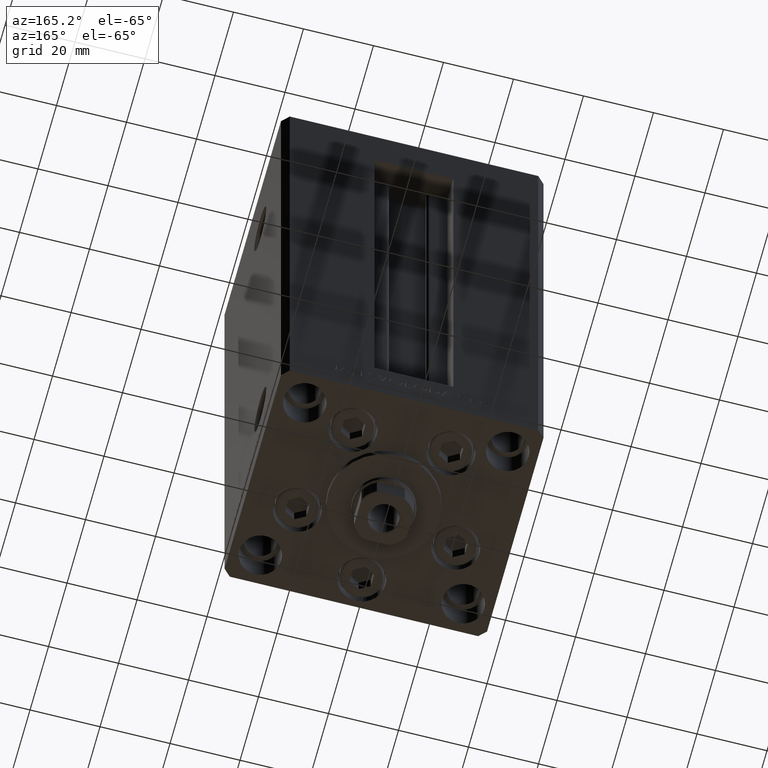
[diagram: clean part render]
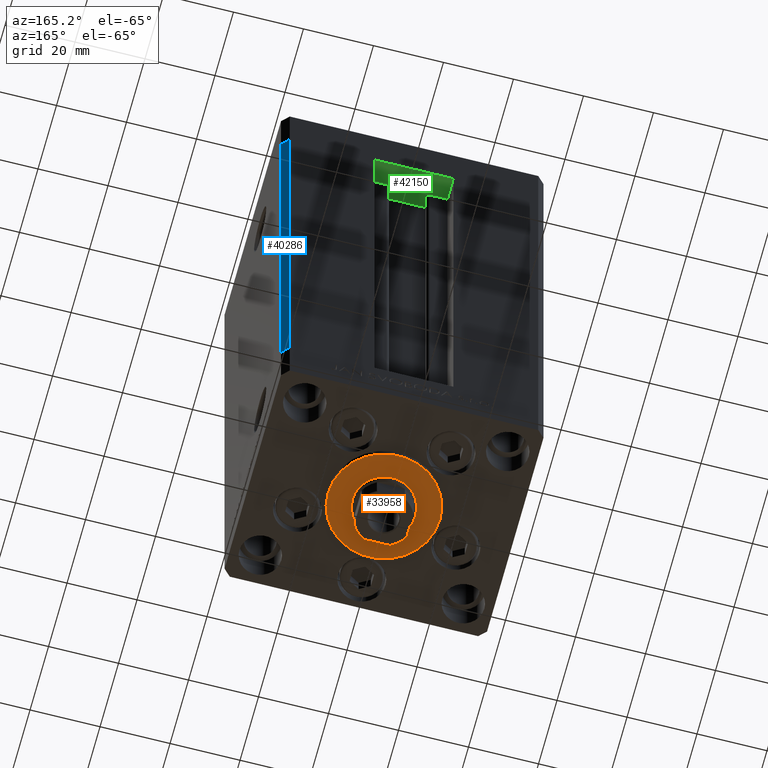
[diagram: same view with three faces highlighted in distinct colors, each labeled with its STEP entity id]
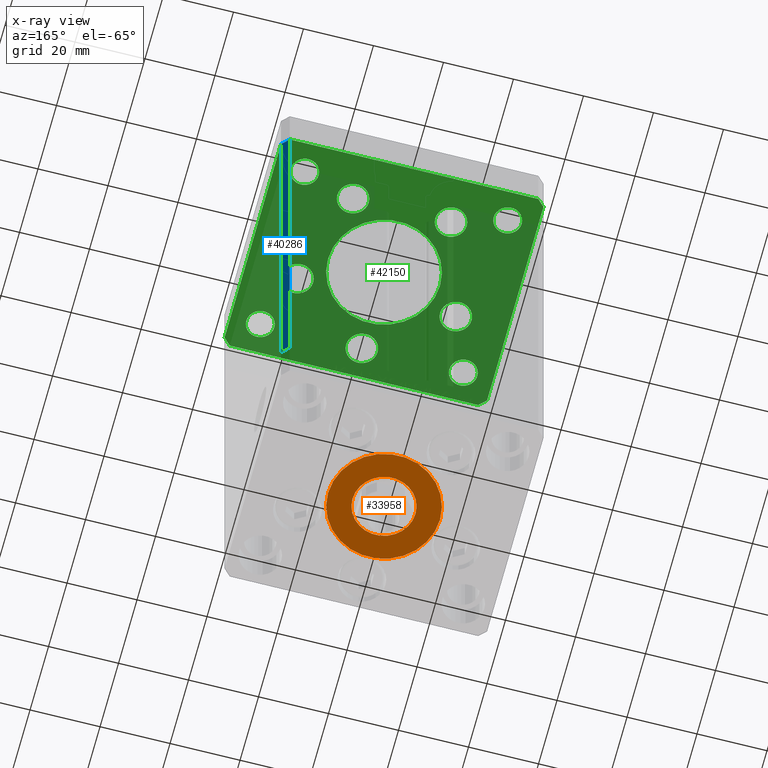
[diagram: x-ray of the same camera — body ghosted, the three highlighted faces saturated]
A machine part, auxiliary view with three faces highlighted in distinct colors.
The next image is the same camera in x-ray (body ghosted, the three faces saturated) — at least one of them is partly hidden behind the body in this view.
Their STEP definitions:

[orange] entity #33958 — the highlighted planar face has unit normal (0, 0, -1).
#1230 = CARTESIAN_POINT ( 'NONE',  ( -9.000000000000000000, -5.836711784674610467E-15, 2.000000000000000000 ) ) ;
#1290 = EDGE_CURVE ( 'NONE', #18493, #31038, #43567, .T. ) ;
#2140 = CARTESIAN_POINT ( 'NONE',  ( 16.00000000000000355, -4.979459025271462852E-15, 2.000000000000000000 ) ) ;
#2285 = DIRECTION ( 'NONE',  ( 1.000000000000000000, 0.000000000000000000, 0.000000000000000000 ) ) ;
#3329 = EDGE_CURVE ( 'NONE', #31038, #18493, #34871, .T. ) ;
#3534 = AXIS2_PLACEMENT_3D ( 'NONE', #17455, #47856, #13955 ) ;
#4815 = CIRCLE ( 'NONE', #11962, 9.000000000000000000 ) ;
#5943 = DIRECTION ( 'NONE',  ( 0.000000000000000000, 0.000000000000000000, 1.000000000000000000 ) ) ;
#11962 = AXIS2_PLACEMENT_3D ( 'NONE', #37442, #37687, #26223 ) ;
#12464 = CARTESIAN_POINT ( 'NONE',  ( 0.000000000000000000, -6.938893903907228378E-15, 2.000000000000000000 ) ) ;
#13387 = AXIS2_PLACEMENT_3D ( 'NONE', #12464, #23217, #38891 ) ;
#13760 = ORIENTED_EDGE ( 'NONE', *, *, #3329, .T. ) ;
#13955 = DIRECTION ( 'NONE',  ( 1.000000000000000000, 0.000000000000000000, 0.000000000000000000 ) ) ;
#14945 = EDGE_LOOP ( 'NONE', ( #13760, #24276 ) ) ;
#17455 = CARTESIAN_POINT ( 'NONE',  ( 0.000000000000000000, -6.938893903907228378E-15, 2.000000000000000000 ) ) ;
#18493 = VERTEX_POINT ( 'NONE', #2140 ) ;
#21156 = DIRECTION ( 'NONE',  ( 1.000000000000000000, 0.000000000000000000, -0.000000000000000000 ) ) ;
#23217 = DIRECTION ( 'NONE',  ( 0.000000000000000000, 0.000000000000000000, 1.000000000000000000 ) ) ;
#24276 = ORIENTED_EDGE ( 'NONE', *, *, #1290, .T. ) ;
#24395 = PLANE ( 'NONE',  #35051 ) ;
#24723 = CARTESIAN_POINT ( 'NONE',  ( 0.000000000000000000, -6.938893903907228378E-15, 2.000000000000000000 ) ) ;
#26223 = DIRECTION ( 'NONE',  ( 1.000000000000000000, 0.000000000000000000, 0.000000000000000000 ) ) ;
#28373 = CARTESIAN_POINT ( 'NONE',  ( 0.000000000000000000, -6.938893903907228378E-15, 2.000000000000000000 ) ) ;
#29781 = CIRCLE ( 'NONE', #3534, 9.000000000000000000 ) ;
#30275 = ORIENTED_EDGE ( 'NONE', *, *, #45425, .F. ) ;
#30739 = CARTESIAN_POINT ( 'NONE',  ( 9.000000000000000000, -6.938893903907228378E-15, 2.000000000000000000 ) ) ;
#31038 = VERTEX_POINT ( 'NONE', #39585 ) ;
#31485 = ORIENTED_EDGE ( 'NONE', *, *, #37812, .F. ) ;
#33958 = ADVANCED_FACE ( 'NONE', ( #39103, #40089 ), #24395, .T. ) ;
#34871 = CIRCLE ( 'NONE', #13387, 16.00000000000000355 ) ;
#35051 = AXIS2_PLACEMENT_3D ( 'NONE', #28373, #5943, #21156 ) ;
#37442 = CARTESIAN_POINT ( 'NONE',  ( 0.000000000000000000, -6.938893903907228378E-15, 2.000000000000000000 ) ) ;
#37687 = DIRECTION ( 'NONE',  ( 0.000000000000000000, 0.000000000000000000, 1.000000000000000000 ) ) ;
#37812 = EDGE_CURVE ( 'NONE', #40835, #46482, #4815, .T. ) ;
#38891 = DIRECTION ( 'NONE',  ( 1.000000000000000000, 0.000000000000000000, 0.000000000000000000 ) ) ;
#39103 = FACE_BOUND ( 'NONE', #45609, .T. ) ;
#39585 = CARTESIAN_POINT ( 'NONE',  ( -16.00000000000000355, -6.938893903907228378E-15, 2.000000000000000000 ) ) ;
#40089 = FACE_OUTER_BOUND ( 'NONE', #14945, .T. ) ;
#40160 = DIRECTION ( 'NONE',  ( 0.000000000000000000, 0.000000000000000000, 1.000000000000000000 ) ) ;
#40835 = VERTEX_POINT ( 'NONE', #30739 ) ;
#42784 = AXIS2_PLACEMENT_3D ( 'NONE', #24723, #40160, #2285 ) ;
#43567 = CIRCLE ( 'NONE', #42784, 16.00000000000000355 ) ;
#45425 = EDGE_CURVE ( 'NONE', #46482, #40835, #29781, .T. ) ;
#45609 = EDGE_LOOP ( 'NONE', ( #31485, #30275 ) ) ;
#46482 = VERTEX_POINT ( 'NONE', #1230 ) ;
#47856 = DIRECTION ( 'NONE',  ( 0.000000000000000000, 0.000000000000000000, 1.000000000000000000 ) ) ;

[blue] entity #40286 — the highlighted planar face has unit normal (0.7071, 0.7071, 0).
#1353 = EDGE_CURVE ( 'NONE', #36425, #32626, #43920, .T. ) ;
#1440 = ORIENTED_EDGE ( 'NONE', *, *, #23795, .F. ) ;
#3404 = ORIENTED_EDGE ( 'NONE', *, *, #24308, .F. ) ;
#3437 = DIRECTION ( 'NONE',  ( 0.7071067811865500152, -0.7071067811865451302, 0.000000000000000000 ) ) ;
#6023 = LINE ( 'NONE', #10006, #43459 ) ;
#6267 = DIRECTION ( 'NONE',  ( 0.7071067811865500152, -0.7071067811865451302, 0.000000000000000000 ) ) ;
#7431 = AXIS2_PLACEMENT_3D ( 'NONE', #40164, #8662, #30610 ) ;
#8662 = DIRECTION ( 'NONE',  ( 0.7071067811865451302, 0.7071067811865500152, -0.000000000000000000 ) ) ;
#10006 = CARTESIAN_POINT ( 'NONE',  ( 35.50000000000000000, 32.49999999999999289, 0.000000000000000000 ) ) ;
#10168 = LINE ( 'NONE', #21643, #29264 ) ;
#11663 = ORIENTED_EDGE ( 'NONE', *, *, #26173, .T. ) ;
#16139 = LINE ( 'NONE', #31346, #26772 ) ;
#17356 = VERTEX_POINT ( 'NONE', #42839 ) ;
#18081 = ORIENTED_EDGE ( 'NONE', *, *, #1353, .T. ) ;
#18282 = VERTEX_POINT ( 'NONE', #24694 ) ;
#20081 = CARTESIAN_POINT ( 'NONE',  ( 37.50000000000000711, 30.50000000000000000, 136.0000000000000000 ) ) ;
#20734 = CARTESIAN_POINT ( 'NONE',  ( 37.50000000000000711, 30.50000000000000000, 136.0000000000000000 ) ) ;
#21643 = CARTESIAN_POINT ( 'NONE',  ( 35.50000000000000000, 32.49999999999999289, 136.0000000000000000 ) ) ;
#23795 = EDGE_CURVE ( 'NONE', #18282, #32626, #6023, .T. ) ;
#24308 = EDGE_CURVE ( 'NONE', #17356, #18282, #16139, .T. ) ;
#24694 = CARTESIAN_POINT ( 'NONE',  ( 35.50000000000000000, 32.49999999999999289, 0.000000000000000000 ) ) ;
#25280 = VECTOR ( 'NONE', #35934, 1000.000000000000000 ) ;
#26173 = EDGE_CURVE ( 'NONE', #17356, #36425, #10168, .T. ) ;
#26772 = VECTOR ( 'NONE', #46561, 1000.000000000000000 ) ;
#27773 = CARTESIAN_POINT ( 'NONE',  ( 37.50000000000000711, 30.50000000000000000, 0.000000000000000000 ) ) ;
#28707 = FACE_OUTER_BOUND ( 'NONE', #48189, .T. ) ;
#29264 = VECTOR ( 'NONE', #3437, 1000.000000000000114 ) ;
#30610 = DIRECTION ( 'NONE',  ( -0.7071067811865500152, 0.7071067811865451302, 0.000000000000000000 ) ) ;
#31346 = CARTESIAN_POINT ( 'NONE',  ( 35.50000000000000000, 32.49999999999999289, 136.0000000000000000 ) ) ;
#32626 = VERTEX_POINT ( 'NONE', #27773 ) ;
#35934 = DIRECTION ( 'NONE',  ( -0.000000000000000000, -0.000000000000000000, -1.000000000000000000 ) ) ;
#36425 = VERTEX_POINT ( 'NONE', #20081 ) ;
#40164 = CARTESIAN_POINT ( 'NONE',  ( 35.50000000000000000, 32.49999999999999289, 136.0000000000000000 ) ) ;
#40286 = ADVANCED_FACE ( 'NONE', ( #28707 ), #43924, .T. ) ;
#42839 = CARTESIAN_POINT ( 'NONE',  ( 35.50000000000000000, 32.49999999999999289, 136.0000000000000000 ) ) ;
#43459 = VECTOR ( 'NONE', #6267, 1000.000000000000114 ) ;
#43920 = LINE ( 'NONE', #20734, #25280 ) ;
#43924 = PLANE ( 'NONE',  #7431 ) ;
#46561 = DIRECTION ( 'NONE',  ( -0.000000000000000000, -0.000000000000000000, -1.000000000000000000 ) ) ;
#48189 = EDGE_LOOP ( 'NONE', ( #1440, #3404, #11663, #18081 ) ) ;

[green] entity #42150 — the highlighted planar face has unit normal (0, 0, 1).
#232 = CARTESIAN_POINT ( 'NONE',  ( 37.49999999999992184, 30.50000000000001066, -15.00000000000000000 ) ) ;
#525 = AXIS2_PLACEMENT_3D ( 'NONE', #14129, #44295, #10874 ) ;
#616 = EDGE_CURVE ( 'NONE', #21477, #29511, #42752, .T. ) ;
#666 = AXIS2_PLACEMENT_3D ( 'NONE', #14897, #11149, #22865 ) ;
#700 = VERTEX_POINT ( 'NONE', #4431 ) ;
#746 = ORIENTED_EDGE ( 'NONE', *, *, #7643, .F. ) ;
#842 = AXIS2_PLACEMENT_3D ( 'NONE', #20213, #42900, #45654 ) ;
#1044 = EDGE_CURVE ( 'NONE', #27086, #21749, #10929, .T. ) ;
#1264 = FACE_BOUND ( 'NONE', #30896, .T. ) ;
#1465 = CARTESIAN_POINT ( 'NONE',  ( 37.50000000000001421, -30.50000000000000711, -15.00000000000000000 ) ) ;
#2245 = AXIS2_PLACEMENT_3D ( 'NONE', #3318, #34449, #41451 ) ;
#2641 = DIRECTION ( 'NONE',  ( 0.000000000000000000, -0.000000000000000000, -1.000000000000000000 ) ) ;
#2957 = DIRECTION ( 'NONE',  ( 0.000000000000000000, -0.000000000000000000, -1.000000000000000000 ) ) ;
#3318 = CARTESIAN_POINT ( 'NONE',  ( -29.00000000000001066, -23.99999999999999289, -15.00000000000000000 ) ) ;
#3576 = DIRECTION ( 'NONE',  ( -0.000000000000000000, -0.000000000000000000, -1.000000000000000000 ) ) ;
#3810 = VERTEX_POINT ( 'NONE', #5401 ) ;
#3818 = DIRECTION ( 'NONE',  ( 1.000000000000000000, 9.773090005503140331E-17, 0.000000000000000000 ) ) ;
#4197 = VERTEX_POINT ( 'NONE', #23810 ) ;
#4246 = CARTESIAN_POINT ( 'NONE',  ( 29.00000000000001066, 24.00000000000000711, -15.00000000000000000 ) ) ;
#4318 = ORIENTED_EDGE ( 'NONE', *, *, #7775, .F. ) ;
#4344 = CARTESIAN_POINT ( 'NONE',  ( -18.49106857963322526, 19.49999999999999645, -15.00000000000000000 ) ) ;
#4431 = CARTESIAN_POINT ( 'NONE',  ( 4.500000000000003553, -24.00000000000000000, -15.00000000000000000 ) ) ;
#4612 = VECTOR ( 'NONE', #37537, 1000.000000000000000 ) ;
#4788 = DIRECTION ( 'NONE',  ( 1.000000000000000000, 0.000000000000000000, 0.000000000000000000 ) ) ;
#5201 = CARTESIAN_POINT ( 'NONE',  ( 2.939152317953647500E-15, -24.00000000000000000, -15.00000000000000000 ) ) ;
#5401 = CARTESIAN_POINT ( 'NONE',  ( -37.50000000000001421, 30.49999999999998579, -15.00000000000000000 ) ) ;
#5475 = CIRCLE ( 'NONE', #19016, 4.000000000000000000 ) ;
#5625 = CIRCLE ( 'NONE', #42256, 4.500000000000005329 ) ;
#5636 = CARTESIAN_POINT ( 'NONE',  ( 35.50000000000000711, -32.50000000000000711, -15.00000000000000000 ) ) ;
#6250 = ORIENTED_EDGE ( 'NONE', *, *, #12266, .F. ) ;
#6318 = DIRECTION ( 'NONE',  ( 1.000000000000000000, 0.000000000000000000, 0.000000000000000000 ) ) ;
#6409 = CARTESIAN_POINT ( 'NONE',  ( -13.99106857963322703, 19.49999999999999645, -15.00000000000000000 ) ) ;
#6484 = VERTEX_POINT ( 'NONE', #4344 ) ;
#6688 = DIRECTION ( 'NONE',  ( 1.000000000000000000, 0.000000000000000000, 0.000000000000000000 ) ) ;
#7029 = CARTESIAN_POINT ( 'NONE',  ( 18.49106857963322881, 19.50000000000000000, -15.00000000000000000 ) ) ;
#7391 = CARTESIAN_POINT ( 'NONE',  ( 18.12741699796951877, -8.000000000000000000, -15.00000000000000000 ) ) ;
#7635 = VECTOR ( 'NONE', #3818, 1000.000000000000000 ) ;
#7643 = EDGE_CURVE ( 'NONE', #21749, #27086, #42851, .T. ) ;
#7681 = CARTESIAN_POINT ( 'NONE',  ( -35.49999999999998579, -32.50000000000001421, -15.00000000000000000 ) ) ;
#7775 = EDGE_CURVE ( 'NONE', #33415, #700, #40490, .T. ) ;
#8198 = EDGE_CURVE ( 'NONE', #42674, #11990, #5475, .T. ) ;
#8255 = EDGE_CURVE ( 'NONE', #39407, #36301, #22212, .T. ) ;
#8803 = EDGE_LOOP ( 'NONE', ( #9257, #17167 ) ) ;
#8996 = CARTESIAN_POINT ( 'NONE',  ( 2.939152317953647500E-15, -24.00000000000000000, -15.00000000000000000 ) ) ;
#9058 = EDGE_LOOP ( 'NONE', ( #45356, #42800 ) ) ;
#9212 = DIRECTION ( 'NONE',  ( -0.000000000000000000, 0.000000000000000000, 1.000000000000000000 ) ) ;
#9257 = ORIENTED_EDGE ( 'NONE', *, *, #21452, .F. ) ;
#9392 = VERTEX_POINT ( 'NONE', #48269 ) ;
#9547 = CARTESIAN_POINT ( 'NONE',  ( 25.00000000000000711, -23.99999999999999289, -15.00000000000000000 ) ) ;
#9696 = DIRECTION ( 'NONE',  ( 0.000000000000000000, 0.000000000000000000, 1.000000000000000000 ) ) ;
#10038 = CIRCLE ( 'NONE', #25954, 4.000000000000003553 ) ;
#10181 = DIRECTION ( 'NONE',  ( 1.000000000000000000, 0.000000000000000000, 0.000000000000000000 ) ) ;
#10234 = DIRECTION ( 'NONE',  ( 0.000000000000000000, -0.000000000000000000, -1.000000000000000000 ) ) ;
#10734 = EDGE_LOOP ( 'NONE', ( #38906, #6250 ) ) ;
#10781 = EDGE_LOOP ( 'NONE', ( #47275, #47835, #27870, #16927, #12382, #41226, #35056, #36435 ) ) ;
#10798 = VERTEX_POINT ( 'NONE', #31234 ) ;
#10870 = AXIS2_PLACEMENT_3D ( 'NONE', #6409, #48765, #25360 ) ;
#10874 = DIRECTION ( 'NONE',  ( 1.000000000000000000, 0.000000000000000000, 0.000000000000000000 ) ) ;
#10906 = DIRECTION ( 'NONE',  ( -1.000000000000000000, -1.954618001100629052E-16, 0.000000000000000000 ) ) ;
#10929 = CIRCLE ( 'NONE', #39564, 3.999999999999996447 ) ;
#11149 = DIRECTION ( 'NONE',  ( 0.000000000000000000, -0.000000000000000000, -1.000000000000000000 ) ) ;
#11235 = VERTEX_POINT ( 'NONE', #41367 ) ;
#11294 = DIRECTION ( 'NONE',  ( -1.000000000000000000, 0.000000000000000000, 0.000000000000000000 ) ) ;
#11299 = EDGE_CURVE ( 'NONE', #25141, #4197, #27377, .T. ) ;
#11454 = DIRECTION ( 'NONE',  ( -1.000000000000000000, 0.000000000000000000, 0.000000000000000000 ) ) ;
#11990 = VERTEX_POINT ( 'NONE', #19850 ) ;
#12033 = CARTESIAN_POINT ( 'NONE',  ( 16.00000000000000000, 0.000000000000000000, -15.00000000000000000 ) ) ;
#12266 = EDGE_CURVE ( 'NONE', #9392, #44294, #26568, .T. ) ;
#12382 = ORIENTED_EDGE ( 'NONE', *, *, #11299, .F. ) ;
#12447 = VERTEX_POINT ( 'NONE', #9547 ) ;
#12512 = DIRECTION ( 'NONE',  ( -1.000000000000000000, 0.000000000000000000, 0.000000000000000000 ) ) ;
#12644 = VERTEX_POINT ( 'NONE', #1465 ) ;
#12711 = FACE_BOUND ( 'NONE', #9058, .T. ) ;
#12857 = CARTESIAN_POINT ( 'NONE',  ( -4.499999999999999112, -24.00000000000000000, -15.00000000000000000 ) ) ;
#13430 = AXIS2_PLACEMENT_3D ( 'NONE', #22752, #33705, #15273 ) ;
#13637 = CIRCLE ( 'NONE', #45487, 4.000000000000003553 ) ;
#13727 = EDGE_CURVE ( 'NONE', #700, #33415, #24996, .T. ) ;
#14102 = AXIS2_PLACEMENT_3D ( 'NONE', #33600, #22146, #6688 ) ;
#14129 = CARTESIAN_POINT ( 'NONE',  ( -13.99106857963322703, 19.49999999999999645, -15.00000000000000000 ) ) ;
#14354 = DIRECTION ( 'NONE',  ( 1.000000000000000000, 0.000000000000000000, 0.000000000000000000 ) ) ;
#14897 = CARTESIAN_POINT ( 'NONE',  ( 0.000000000000000000, 0.000000000000000000, -15.00000000000000000 ) ) ;
#14908 = CARTESIAN_POINT ( 'NONE',  ( 35.49999999999992184, 32.50000000000000711, -15.00000000000000000 ) ) ;
#15039 = VECTOR ( 'NONE', #19317, 1000.000000000000000 ) ;
#15077 = DIRECTION ( 'NONE',  ( 0.000000000000000000, -0.000000000000000000, -1.000000000000000000 ) ) ;
#15206 = DIRECTION ( 'NONE',  ( 4.550094363217855288E-16, -1.000000000000000000, 0.000000000000000000 ) ) ;
#15273 = DIRECTION ( 'NONE',  ( 1.000000000000000000, 0.000000000000000000, 0.000000000000000000 ) ) ;
#15429 = DIRECTION ( 'NONE',  ( -0.7071067811865482389, 0.7071067811865469066, 0.000000000000000000 ) ) ;
#15642 = ORIENTED_EDGE ( 'NONE', *, *, #8255, .F. ) ;
#15654 = DIRECTION ( 'NONE',  ( 1.000000000000000000, 0.000000000000000000, 0.000000000000000000 ) ) ;
#15778 = CIRCLE ( 'NONE', #666, 16.00000000000000000 ) ;
#16131 = DIRECTION ( 'NONE',  ( 0.000000000000000000, 0.000000000000000000, 1.000000000000000000 ) ) ;
#16305 = EDGE_CURVE ( 'NONE', #11990, #42674, #48942, .T. ) ;
#16381 = AXIS2_PLACEMENT_3D ( 'NONE', #26416, #30398, #11454 ) ;
#16806 = ORIENTED_EDGE ( 'NONE', *, *, #37931, .F. ) ;
#16927 = ORIENTED_EDGE ( 'NONE', *, *, #31113, .F. ) ;
#16936 = CARTESIAN_POINT ( 'NONE',  ( 0.000000000000000000, 0.000000000000000000, -15.00000000000000000 ) ) ;
#17135 = LINE ( 'NONE', #36830, #40101 ) ;
#17167 = ORIENTED_EDGE ( 'NONE', *, *, #24502, .F. ) ;
#17188 = FACE_BOUND ( 'NONE', #48899, .T. ) ;
#17578 = CIRCLE ( 'NONE', #21573, 4.500000000000000888 ) ;
#18407 = EDGE_CURVE ( 'NONE', #12447, #42615, #21934, .T. ) ;
#18948 = ORIENTED_EDGE ( 'NONE', *, *, #616, .F. ) ;
#18950 = EDGE_LOOP ( 'NONE', ( #35126, #16806 ) ) ;
#19016 = AXIS2_PLACEMENT_3D ( 'NONE', #24403, #9696, #31882 ) ;
#19307 = CARTESIAN_POINT ( 'NONE',  ( -27.12741699796951877, -8.000000000000005329, -15.00000000000000000 ) ) ;
#19317 = DIRECTION ( 'NONE',  ( -0.7071067811865426878, -0.7071067811865524577, 0.000000000000000000 ) ) ;
#19390 = CARTESIAN_POINT ( 'NONE',  ( -35.50000000000002842, 32.49999999999999289, -15.00000000000000000 ) ) ;
#19850 = CARTESIAN_POINT ( 'NONE',  ( -33.00000000000000711, 24.00000000000000711, -15.00000000000000000 ) ) ;
#19941 = DIRECTION ( 'NONE',  ( 1.000000000000000000, 0.000000000000000000, 0.000000000000000000 ) ) ;
#20098 = ORIENTED_EDGE ( 'NONE', *, *, #8198, .T. ) ;
#20213 = CARTESIAN_POINT ( 'NONE',  ( 0.000000000000000000, 0.000000000000000000, -15.00000000000000000 ) ) ;
#20268 = DIRECTION ( 'NONE',  ( 0.7071067811865474617, -0.7071067811865474617, 0.000000000000000000 ) ) ;
#20309 = AXIS2_PLACEMENT_3D ( 'NONE', #25268, #20796, #6318 ) ;
#20796 = DIRECTION ( 'NONE',  ( 0.000000000000000000, 0.000000000000000000, 1.000000000000000000 ) ) ;
#20985 = EDGE_LOOP ( 'NONE', ( #30661, #4318 ) ) ;
#21452 = EDGE_CURVE ( 'NONE', #43067, #6484, #43542, .T. ) ;
#21477 = VERTEX_POINT ( 'NONE', #25607 ) ;
#21573 = AXIS2_PLACEMENT_3D ( 'NONE', #44392, #10234, #37656 ) ;
#21749 = VERTEX_POINT ( 'NONE', #48153 ) ;
#21934 = CIRCLE ( 'NONE', #16381, 4.000000000000003553 ) ;
#22083 = LINE ( 'NONE', #48984, #4612 ) ;
#22146 = DIRECTION ( 'NONE',  ( 0.000000000000000000, -0.000000000000000000, -1.000000000000000000 ) ) ;
#22184 = CIRCLE ( 'NONE', #13430, 4.499999999999997335 ) ;
#22212 = CIRCLE ( 'NONE', #48461, 4.500000000000000888 ) ;
#22329 = CIRCLE ( 'NONE', #842, 16.00000000000000000 ) ;
#22502 = VERTEX_POINT ( 'NONE', #29991 ) ;
#22646 = EDGE_CURVE ( 'NONE', #49001, #31268, #30973, .T. ) ;
#22752 = CARTESIAN_POINT ( 'NONE',  ( -22.62741699796951877, -8.000000000000005329, -15.00000000000000000 ) ) ;
#22865 = DIRECTION ( 'NONE',  ( 1.000000000000000000, 0.000000000000000000, 0.000000000000000000 ) ) ;
#23335 = CARTESIAN_POINT ( 'NONE',  ( 33.00000000000001421, -23.99999999999999289, -15.00000000000000000 ) ) ;
#23591 = EDGE_CURVE ( 'NONE', #42615, #12447, #10038, .T. ) ;
#23602 = VERTEX_POINT ( 'NONE', #12033 ) ;
#23810 = CARTESIAN_POINT ( 'NONE',  ( 35.49999999999992184, 32.50000000000000711, -15.00000000000000000 ) ) ;
#23943 = FACE_BOUND ( 'NONE', #35420, .T. ) ;
#24179 = FACE_BOUND ( 'NONE', #18950, .T. ) ;
#24403 = CARTESIAN_POINT ( 'NONE',  ( -29.00000000000001066, 24.00000000000000711, -15.00000000000000000 ) ) ;
#24502 = EDGE_CURVE ( 'NONE', #6484, #43067, #41107, .T. ) ;
#24635 = VECTOR ( 'NONE', #10906, 1000.000000000000000 ) ;
#24746 = LINE ( 'NONE', #46690, #44944 ) ;
#24996 = CIRCLE ( 'NONE', #39294, 4.500000000000001776 ) ;
#25141 = VERTEX_POINT ( 'NONE', #34608 ) ;
#25203 = ORIENTED_EDGE ( 'NONE', *, *, #30374, .F. ) ;
#25232 = CARTESIAN_POINT ( 'NONE',  ( -25.00000000000001066, 24.00000000000000711, -15.00000000000000000 ) ) ;
#25268 = CARTESIAN_POINT ( 'NONE',  ( -29.00000000000001066, 24.00000000000000711, -15.00000000000000000 ) ) ;
#25360 = DIRECTION ( 'NONE',  ( 1.000000000000000000, 0.000000000000000000, 0.000000000000000000 ) ) ;
#25396 = CARTESIAN_POINT ( 'NONE',  ( 22.62741699796951877, -8.000000000000000000, -15.00000000000000000 ) ) ;
#25607 = CARTESIAN_POINT ( 'NONE',  ( -18.12741699796952233, -8.000000000000005329, -15.00000000000000000 ) ) ;
#25954 = AXIS2_PLACEMENT_3D ( 'NONE', #30731, #46677, #12512 ) ;
#26348 = ORIENTED_EDGE ( 'NONE', *, *, #39388, .T. ) ;
#26416 = CARTESIAN_POINT ( 'NONE',  ( 29.00000000000001066, -23.99999999999999289, -15.00000000000000000 ) ) ;
#26568 = CIRCLE ( 'NONE', #38481, 4.500000000000005329 ) ;
#26775 = DIRECTION ( 'NONE',  ( 1.000000000000000000, 0.000000000000000000, 0.000000000000000000 ) ) ;
#27086 = VERTEX_POINT ( 'NONE', #36161 ) ;
#27156 = AXIS2_PLACEMENT_3D ( 'NONE', #4246, #35130, #19941 ) ;
#27262 = EDGE_CURVE ( 'NONE', #31268, #12644, #22083, .T. ) ;
#27377 = LINE ( 'NONE', #232, #37541 ) ;
#27870 = ORIENTED_EDGE ( 'NONE', *, *, #30115, .F. ) ;
#27886 = DIRECTION ( 'NONE',  ( 0.000000000000000000, -0.000000000000000000, -1.000000000000000000 ) ) ;
#29137 = EDGE_CURVE ( 'NONE', #23602, #22502, #15778, .T. ) ;
#29497 = CARTESIAN_POINT ( 'NONE',  ( -29.00000000000001066, -23.99999999999999289, -15.00000000000000000 ) ) ;
#29511 = VERTEX_POINT ( 'NONE', #19307 ) ;
#29991 = CARTESIAN_POINT ( 'NONE',  ( -16.00000000000000000, 1.959434878635764737E-15, -15.00000000000000000 ) ) ;
#30052 = ORIENTED_EDGE ( 'NONE', *, *, #39096, .F. ) ;
#30115 = EDGE_CURVE ( 'NONE', #34135, #3810, #41260, .T. ) ;
#30213 = ORIENTED_EDGE ( 'NONE', *, *, #16305, .T. ) ;
#30374 = EDGE_CURVE ( 'NONE', #29511, #21477, #22184, .T. ) ;
#30398 = DIRECTION ( 'NONE',  ( -0.000000000000000000, -0.000000000000000000, -1.000000000000000000 ) ) ;
#30661 = ORIENTED_EDGE ( 'NONE', *, *, #13727, .F. ) ;
#30731 = CARTESIAN_POINT ( 'NONE',  ( 29.00000000000001066, -23.99999999999999289, -15.00000000000000000 ) ) ;
#30812 = EDGE_CURVE ( 'NONE', #3810, #40697, #35908, .T. ) ;
#30896 = EDGE_LOOP ( 'NONE', ( #42337, #26348 ) ) ;
#30960 = AXIS2_PLACEMENT_3D ( 'NONE', #8996, #38919, #4788 ) ;
#30973 = LINE ( 'NONE', #34703, #7635 ) ;
#31113 = EDGE_CURVE ( 'NONE', #4197, #34135, #45320, .T. ) ;
#31234 = CARTESIAN_POINT ( 'NONE',  ( 25.00000000000000711, 24.00000000000000711, -15.00000000000000000 ) ) ;
#31268 = VERTEX_POINT ( 'NONE', #5636 ) ;
#31652 = FACE_OUTER_BOUND ( 'NONE', #10781, .T. ) ;
#31882 = DIRECTION ( 'NONE',  ( 1.000000000000000000, 0.000000000000000000, 0.000000000000000000 ) ) ;
#31884 = ORIENTED_EDGE ( 'NONE', *, *, #1044, .F. ) ;
#32148 = DIRECTION ( 'NONE',  ( 1.000000000000000000, 0.000000000000000000, 0.000000000000000000 ) ) ;
#32165 = CARTESIAN_POINT ( 'NONE',  ( -37.50000000000001421, 30.49999999999998579, -15.00000000000000000 ) ) ;
#32519 = CARTESIAN_POINT ( 'NONE',  ( -37.49999999999998579, -30.50000000000001421, -15.00000000000000000 ) ) ;
#33415 = VERTEX_POINT ( 'NONE', #12857 ) ;
#33600 = CARTESIAN_POINT ( 'NONE',  ( -22.62741699796951877, -8.000000000000005329, -15.00000000000000000 ) ) ;
#33655 = EDGE_LOOP ( 'NONE', ( #20098, #30213 ) ) ;
#33705 = DIRECTION ( 'NONE',  ( 0.000000000000000000, -0.000000000000000000, -1.000000000000000000 ) ) ;
#34135 = VERTEX_POINT ( 'NONE', #19390 ) ;
#34369 = EDGE_CURVE ( 'NONE', #44294, #9392, #5625, .T. ) ;
#34449 = DIRECTION ( 'NONE',  ( -0.000000000000000000, -0.000000000000000000, -1.000000000000000000 ) ) ;
#34608 = CARTESIAN_POINT ( 'NONE',  ( 37.49999999999992184, 30.50000000000001066, -15.00000000000000000 ) ) ;
#34703 = CARTESIAN_POINT ( 'NONE',  ( -35.49999999999998579, -32.50000000000001421, -15.00000000000000000 ) ) ;
#35056 = ORIENTED_EDGE ( 'NONE', *, *, #27262, .F. ) ;
#35099 = EDGE_CURVE ( 'NONE', #11235, #10798, #46274, .T. ) ;
#35126 = ORIENTED_EDGE ( 'NONE', *, *, #29137, .F. ) ;
#35130 = DIRECTION ( 'NONE',  ( 0.000000000000000000, 0.000000000000000000, 1.000000000000000000 ) ) ;
#35181 = EDGE_LOOP ( 'NONE', ( #746, #31884 ) ) ;
#35383 = FACE_BOUND ( 'NONE', #10734, .T. ) ;
#35420 = EDGE_LOOP ( 'NONE', ( #18948, #25203 ) ) ;
#35887 = FACE_BOUND ( 'NONE', #8803, .T. ) ;
#35908 = LINE ( 'NONE', #32165, #49302 ) ;
#36161 = CARTESIAN_POINT ( 'NONE',  ( -33.00000000000000711, -23.99999999999999289, -15.00000000000000000 ) ) ;
#36301 = VERTEX_POINT ( 'NONE', #7391 ) ;
#36435 = ORIENTED_EDGE ( 'NONE', *, *, #22646, .F. ) ;
#36553 = CARTESIAN_POINT ( 'NONE',  ( 13.99106857963322348, 19.50000000000000000, -15.00000000000000000 ) ) ;
#36830 = CARTESIAN_POINT ( 'NONE',  ( 37.50000000000001421, -30.50000000000000711, -15.00000000000000000 ) ) ;
#37537 = DIRECTION ( 'NONE',  ( 0.7071067811865487940, 0.7071067811865463515, 0.000000000000000000 ) ) ;
#37541 = VECTOR ( 'NONE', #15429, 999.9999999999998863 ) ;
#37656 = DIRECTION ( 'NONE',  ( 1.000000000000000000, 0.000000000000000000, 0.000000000000000000 ) ) ;
#37931 = EDGE_CURVE ( 'NONE', #22502, #23602, #22329, .T. ) ;
#38095 = CARTESIAN_POINT ( 'NONE',  ( 29.00000000000001066, 24.00000000000000711, -15.00000000000000000 ) ) ;
#38241 = CARTESIAN_POINT ( 'NONE',  ( 13.99106857963322348, 19.50000000000000000, -15.00000000000000000 ) ) ;
#38481 = AXIS2_PLACEMENT_3D ( 'NONE', #38241, #15077, #26775 ) ;
#38906 = ORIENTED_EDGE ( 'NONE', *, *, #34369, .F. ) ;
#38919 = DIRECTION ( 'NONE',  ( 0.000000000000000000, -0.000000000000000000, -1.000000000000000000 ) ) ;
#39096 = EDGE_CURVE ( 'NONE', #36301, #39407, #17578, .T. ) ;
#39131 = FACE_BOUND ( 'NONE', #20985, .T. ) ;
#39294 = AXIS2_PLACEMENT_3D ( 'NONE', #5201, #27886, #46842 ) ;
#39374 = FACE_BOUND ( 'NONE', #35181, .T. ) ;
#39388 = EDGE_CURVE ( 'NONE', #10798, #11235, #13637, .T. ) ;
#39407 = VERTEX_POINT ( 'NONE', #45576 ) ;
#39564 = AXIS2_PLACEMENT_3D ( 'NONE', #29497, #3576, #11294 ) ;
#40033 = AXIS2_PLACEMENT_3D ( 'NONE', #16936, #9212, #32148 ) ;
#40101 = VECTOR ( 'NONE', #47555, 1000.000000000000000 ) ;
#40490 = CIRCLE ( 'NONE', #30960, 4.500000000000001776 ) ;
#40697 = VERTEX_POINT ( 'NONE', #32519 ) ;
#41107 = CIRCLE ( 'NONE', #525, 4.499999999999999112 ) ;
#41226 = ORIENTED_EDGE ( 'NONE', *, *, #44737, .F. ) ;
#41260 = LINE ( 'NONE', #45982, #15039 ) ;
#41367 = CARTESIAN_POINT ( 'NONE',  ( 33.00000000000001421, 24.00000000000000711, -15.00000000000000000 ) ) ;
#41451 = DIRECTION ( 'NONE',  ( -1.000000000000000000, 0.000000000000000000, 0.000000000000000000 ) ) ;
#42150 = ADVANCED_FACE ( 'NONE', ( #24179, #23943, #39131, #17188, #35383, #35887, #1264, #47108, #31652, #12711, #39374 ), #43129, .F. ) ;
#42256 = AXIS2_PLACEMENT_3D ( 'NONE', #36553, #2641, #14354 ) ;
#42337 = ORIENTED_EDGE ( 'NONE', *, *, #35099, .T. ) ;
#42615 = VERTEX_POINT ( 'NONE', #23335 ) ;
#42674 = VERTEX_POINT ( 'NONE', #25232 ) ;
#42752 = CIRCLE ( 'NONE', #14102, 4.499999999999997335 ) ;
#42800 = ORIENTED_EDGE ( 'NONE', *, *, #18407, .F. ) ;
#42851 = CIRCLE ( 'NONE', #2245, 3.999999999999996447 ) ;
#42900 = DIRECTION ( 'NONE',  ( 0.000000000000000000, -0.000000000000000000, -1.000000000000000000 ) ) ;
#43067 = VERTEX_POINT ( 'NONE', #43077 ) ;
#43077 = CARTESIAN_POINT ( 'NONE',  ( -9.491068579633228808, 19.49999999999999645, -15.00000000000000000 ) ) ;
#43129 = PLANE ( 'NONE',  #40033 ) ;
#43542 = CIRCLE ( 'NONE', #10870, 4.499999999999999112 ) ;
#44294 = VERTEX_POINT ( 'NONE', #7029 ) ;
#44295 = DIRECTION ( 'NONE',  ( 0.000000000000000000, -0.000000000000000000, -1.000000000000000000 ) ) ;
#44392 = CARTESIAN_POINT ( 'NONE',  ( 22.62741699796951877, -8.000000000000000000, -15.00000000000000000 ) ) ;
#44737 = EDGE_CURVE ( 'NONE', #12644, #25141, #17135, .T. ) ;
#44944 = VECTOR ( 'NONE', #20268, 1000.000000000000114 ) ;
#45320 = LINE ( 'NONE', #14908, #24635 ) ;
#45356 = ORIENTED_EDGE ( 'NONE', *, *, #23591, .F. ) ;
#45487 = AXIS2_PLACEMENT_3D ( 'NONE', #38095, #16131, #15654 ) ;
#45576 = CARTESIAN_POINT ( 'NONE',  ( 27.12741699796952233, -8.000000000000000000, -15.00000000000000000 ) ) ;
#45654 = DIRECTION ( 'NONE',  ( 1.000000000000000000, 0.000000000000000000, 0.000000000000000000 ) ) ;
#45982 = CARTESIAN_POINT ( 'NONE',  ( -35.50000000000002842, 32.49999999999999289, -15.00000000000000000 ) ) ;
#46274 = CIRCLE ( 'NONE', #27156, 4.000000000000003553 ) ;
#46677 = DIRECTION ( 'NONE',  ( -0.000000000000000000, -0.000000000000000000, -1.000000000000000000 ) ) ;
#46690 = CARTESIAN_POINT ( 'NONE',  ( -37.49999999999998579, -30.50000000000001421, -15.00000000000000000 ) ) ;
#46842 = DIRECTION ( 'NONE',  ( 1.000000000000000000, 0.000000000000000000, 0.000000000000000000 ) ) ;
#46938 = EDGE_CURVE ( 'NONE', #40697, #49001, #24746, .T. ) ;
#47108 = FACE_BOUND ( 'NONE', #33655, .T. ) ;
#47275 = ORIENTED_EDGE ( 'NONE', *, *, #46938, .F. ) ;
#47555 = DIRECTION ( 'NONE',  ( -1.478780668045802821E-15, 1.000000000000000000, 0.000000000000000000 ) ) ;
#47835 = ORIENTED_EDGE ( 'NONE', *, *, #30812, .F. ) ;
#48153 = CARTESIAN_POINT ( 'NONE',  ( -25.00000000000001066, -23.99999999999999289, -15.00000000000000000 ) ) ;
#48269 = CARTESIAN_POINT ( 'NONE',  ( 9.491068579633218150, 19.50000000000000000, -15.00000000000000000 ) ) ;
#48461 = AXIS2_PLACEMENT_3D ( 'NONE', #25396, #2957, #10181 ) ;
#48765 = DIRECTION ( 'NONE',  ( 0.000000000000000000, -0.000000000000000000, -1.000000000000000000 ) ) ;
#48899 = EDGE_LOOP ( 'NONE', ( #15642, #30052 ) ) ;
#48942 = CIRCLE ( 'NONE', #20309, 4.000000000000000000 ) ;
#48984 = CARTESIAN_POINT ( 'NONE',  ( 35.50000000000000711, -32.50000000000000711, -15.00000000000000000 ) ) ;
#49001 = VERTEX_POINT ( 'NONE', #7681 ) ;
#49302 = VECTOR ( 'NONE', #15206, 1000.000000000000000 ) ;